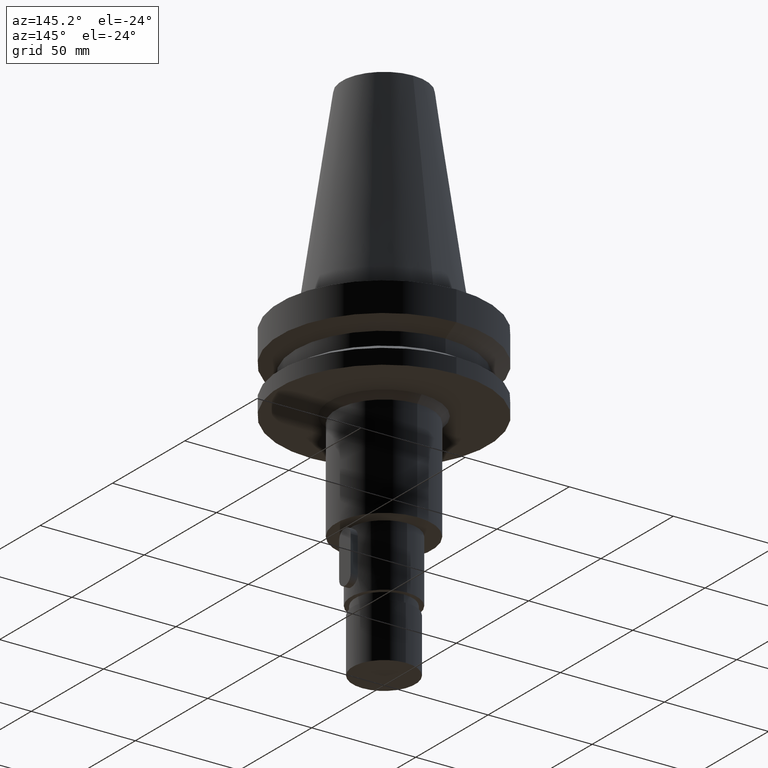
[diagram: clean part render]
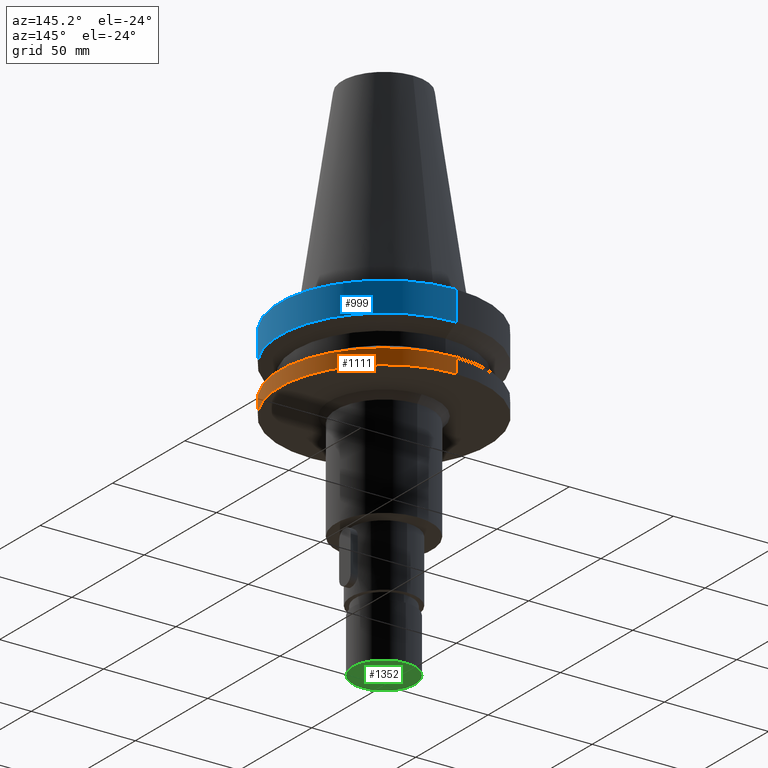
[diagram: same view with three faces highlighted in distinct colors, each labeled with its STEP entity id]
A machine part, auxiliary view with three faces highlighted in distinct colors.
Their STEP definitions:

[orange] entity #1111 — the highlighted cylindrical surface (partial cylindrical patch) has radius 50 mm, axis along (0, 0, -1).
#306=CARTESIAN_POINT('',(0.E0,0.E0,-3.073730776427E1));
#307=DIRECTION('',(0.E0,0.E0,-1.E0));
#308=DIRECTION('',(0.E0,1.E0,0.E0));
#309=AXIS2_PLACEMENT_3D('',#306,#307,#308);
#322=DIRECTION('',(0.E0,3.130707843087E-14,-1.E0));
#323=VECTOR('',#322,7.262692235730E0);
#324=CARTESIAN_POINT('',(0.E0,5.E1,-3.073730776427E1));
#325=LINE('',#324,#323);
#329=DIRECTION('',(0.E0,-3.032873222990E-14,-1.E0));
#330=VECTOR('',#329,7.262692235730E0);
#331=CARTESIAN_POINT('',(0.E0,-5.E1,-3.073730776427E1));
#332=LINE('',#331,#330);
#344=CARTESIAN_POINT('',(0.E0,2.625520272692E-14,-3.8E1));
#345=DIRECTION('',(0.E0,0.E0,1.E0));
#346=DIRECTION('',(0.E0,-1.E0,0.E0));
#347=AXIS2_PLACEMENT_3D('',#344,#345,#346);
#750=CARTESIAN_POINT('',(0.E0,5.E1,-3.073730776427E1));
#751=VERTEX_POINT('',#750);
#752=CARTESIAN_POINT('',(0.E0,-5.E1,-3.073730776427E1));
#753=VERTEX_POINT('',#752);
#754=CARTESIAN_POINT('',(0.E0,5.E1,-3.8E1));
#755=VERTEX_POINT('',#754);
#756=CARTESIAN_POINT('',(0.E0,-5.E1,-3.8E1));
#757=VERTEX_POINT('',#756);
#1097=CARTESIAN_POINT('',(0.E0,2.625520272692E-14,1.1439E2));
#1098=DIRECTION('',(0.E0,0.E0,-1.E0));
#1099=DIRECTION('',(0.E0,-1.E0,0.E0));
#1100=AXIS2_PLACEMENT_3D('',#1097,#1098,#1099);
#1101=CYLINDRICAL_SURFACE('',#1100,5.E1);
#1103=ORIENTED_EDGE('',*,*,#1102,.T.);
#1105=ORIENTED_EDGE('',*,*,#1104,.F.);
#1107=ORIENTED_EDGE('',*,*,#1106,.F.);
#1108=ORIENTED_EDGE('',*,*,#1090,.F.);
#1109=EDGE_LOOP('',(#1103,#1105,#1107,#1108));
#1110=FACE_OUTER_BOUND('',#1109,.F.);
#310=CIRCLE('',#309,5.E1);
#348=CIRCLE('',#347,5.E1);
#1090=EDGE_CURVE('',#751,#753,#310,.T.);
#1102=EDGE_CURVE('',#751,#755,#325,.T.);
#1104=EDGE_CURVE('',#757,#755,#348,.T.);
#1106=EDGE_CURVE('',#753,#757,#332,.T.);
#1111=ADVANCED_FACE('',(#1110),#1101,.T.);

[blue] entity #999 — the highlighted cylindrical surface (partial cylindrical patch) has radius 50 mm, axis along (0, 0, -1).
#170=CARTESIAN_POINT('',(0.E0,2.625520272692E-14,-1.5E0));
#171=DIRECTION('',(0.E0,0.E0,-1.E0));
#172=DIRECTION('',(0.E0,1.E0,0.E0));
#173=AXIS2_PLACEMENT_3D('',#170,#171,#172);
#202=DIRECTION('',(0.E0,-1.605441053570E-14,-1.E0));
#203=VECTOR('',#202,1.416269223573E1);
#204=CARTESIAN_POINT('',(0.E0,5.E1,-1.5E0));
#205=LINE('',#204,#203);
#209=DIRECTION('',(0.E0,1.655611086494E-14,-1.E0));
#210=VECTOR('',#209,1.416269223573E1);
#211=CARTESIAN_POINT('',(0.E0,-5.E1,-1.5E0));
#212=LINE('',#211,#210);
#254=CARTESIAN_POINT('',(0.E0,1.006319759054E-14,-1.566269223573E1));
#255=DIRECTION('',(0.E0,0.E0,1.E0));
#256=DIRECTION('',(0.E0,-1.E0,0.E0));
#257=AXIS2_PLACEMENT_3D('',#254,#255,#256);
#734=CARTESIAN_POINT('',(0.E0,5.E1,-1.5E0));
#735=CARTESIAN_POINT('',(0.E0,-5.E1,-1.5E0));
#736=VERTEX_POINT('',#734);
#737=VERTEX_POINT('',#735);
#738=CARTESIAN_POINT('',(0.E0,5.E1,-1.566269223573E1));
#739=VERTEX_POINT('',#738);
#740=CARTESIAN_POINT('',(1.224646799147E-14,-5.E1,-1.566269223573E1));
#741=VERTEX_POINT('',#740);
#985=CARTESIAN_POINT('',(0.E0,2.625520272692E-14,1.1439E2));
#986=DIRECTION('',(0.E0,0.E0,-1.E0));
#987=DIRECTION('',(0.E0,-1.E0,0.E0));
#988=AXIS2_PLACEMENT_3D('',#985,#986,#987);
#989=CYLINDRICAL_SURFACE('',#988,5.E1);
#991=ORIENTED_EDGE('',*,*,#990,.T.);
#993=ORIENTED_EDGE('',*,*,#992,.F.);
#995=ORIENTED_EDGE('',*,*,#994,.F.);
#996=ORIENTED_EDGE('',*,*,#974,.F.);
#997=EDGE_LOOP('',(#991,#993,#995,#996));
#998=FACE_OUTER_BOUND('',#997,.F.);
#174=CIRCLE('',#173,5.E1);
#258=CIRCLE('',#257,5.E1);
#974=EDGE_CURVE('',#736,#737,#174,.T.);
#990=EDGE_CURVE('',#736,#739,#205,.T.);
#992=EDGE_CURVE('',#741,#739,#258,.T.);
#994=EDGE_CURVE('',#737,#741,#212,.T.);
#999=ADVANCED_FACE('',(#998),#989,.T.);

[green] entity #1352 — the highlighted planar face has unit normal (0, 0, -1).
#564=CARTESIAN_POINT('',(0.E0,2.625520272692E-14,-1.5E2));
#565=DIRECTION('',(0.E0,0.E0,1.E0));
#566=DIRECTION('',(0.E0,1.E0,0.E0));
#567=AXIS2_PLACEMENT_3D('',#564,#565,#566);
#572=CARTESIAN_POINT('',(0.E0,2.625520272692E-14,-1.5E2));
#573=DIRECTION('',(0.E0,0.E0,1.E0));
#574=DIRECTION('',(0.E0,-1.E0,0.E0));
#575=AXIS2_PLACEMENT_3D('',#572,#573,#574);
#797=CARTESIAN_POINT('',(0.E0,1.5E1,-1.5E2));
#798=VERTEX_POINT('',#797);
#799=CARTESIAN_POINT('',(0.E0,-1.5E1,-1.5E2));
#800=VERTEX_POINT('',#799);
#1343=CARTESIAN_POINT('',(0.E0,0.E0,-1.5E2));
#1344=DIRECTION('',(0.E0,0.E0,-1.E0));
#1345=DIRECTION('',(0.E0,-1.E0,0.E0));
#1346=AXIS2_PLACEMENT_3D('',#1343,#1344,#1345);
#1347=PLANE('',#1346);
#1348=ORIENTED_EDGE('',*,*,#1338,.T.);
#1349=ORIENTED_EDGE('',*,*,#1322,.T.);
#1350=EDGE_LOOP('',(#1348,#1349));
#1351=FACE_OUTER_BOUND('',#1350,.F.);
#568=CIRCLE('',#567,1.5E1);
#576=CIRCLE('',#575,1.5E1);
#1322=EDGE_CURVE('',#800,#798,#576,.T.);
#1338=EDGE_CURVE('',#798,#800,#568,.T.);
#1352=ADVANCED_FACE('',(#1351),#1347,.T.);